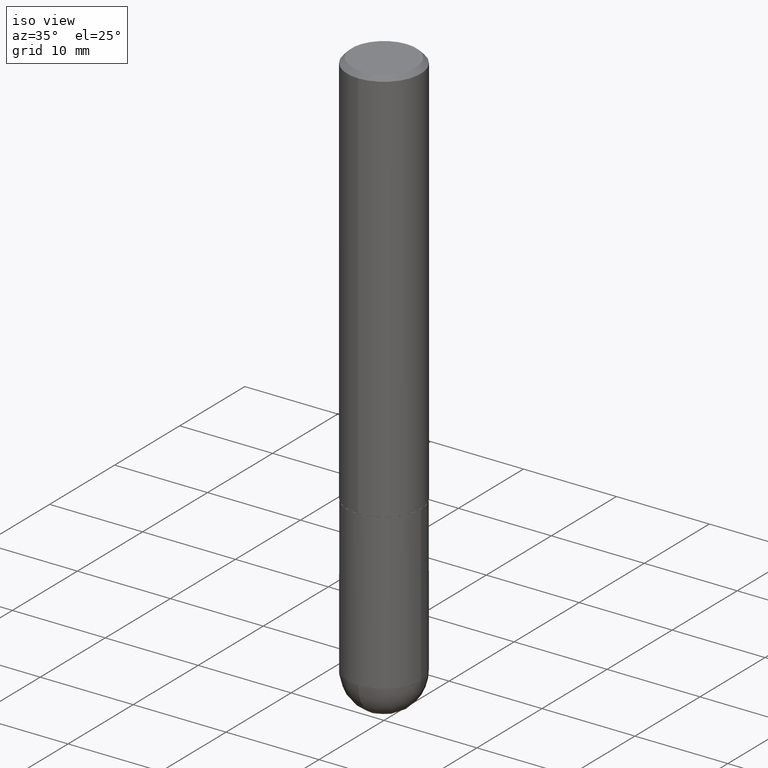
[diagram: clean part render]
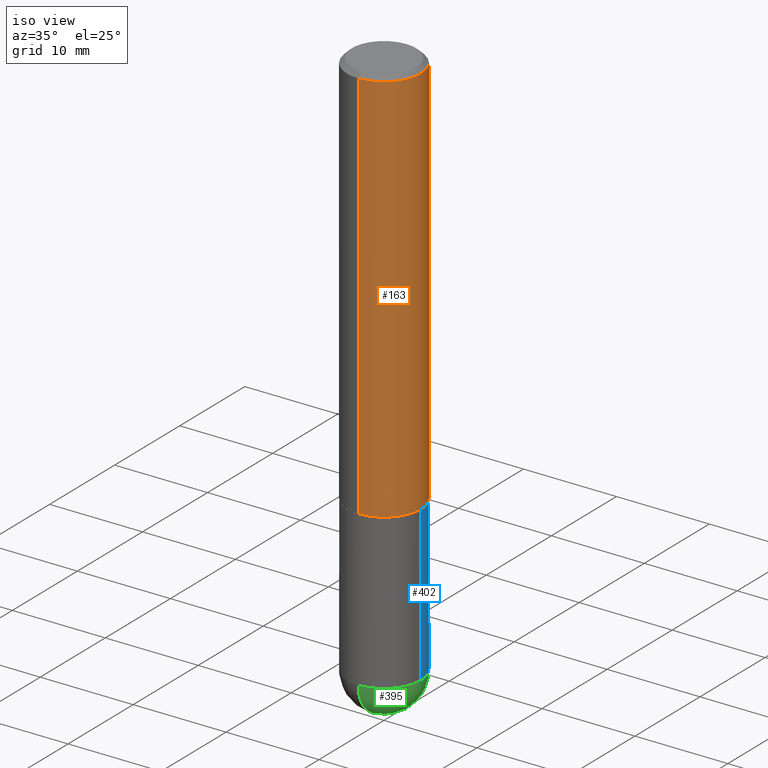
[diagram: same view with three faces highlighted in distinct colors, each labeled with its STEP entity id]
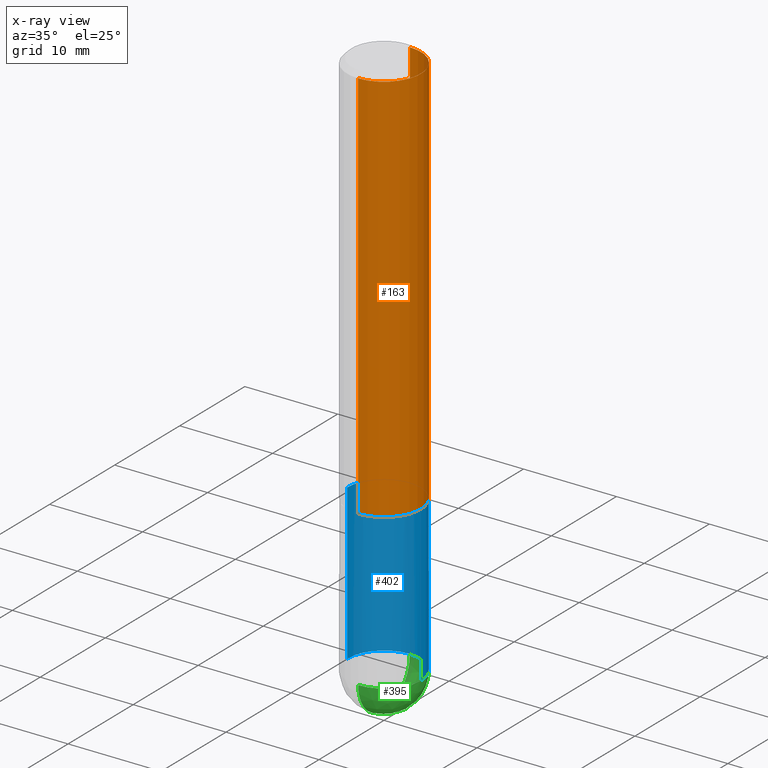
[diagram: x-ray of the same camera — body ghosted, the three highlighted faces saturated]
A machine part, iso view with three faces highlighted in distinct colors.
The next image is the same camera in x-ray (body ghosted, the three faces saturated) — at least one of them is partly hidden behind the body in this view.
Their STEP definitions:

[orange] entity #163 — the highlighted cylindrical surface (partial cylindrical patch) has radius 3.9688 mm, axis along (-0, 0, 1).
#1 = ORIENTED_EDGE ( 'NONE', *, *, #246, .T. ) ;
#5 = VERTEX_POINT ( 'NONE', #139 ) ;
#18 = AXIS2_PLACEMENT_3D ( 'NONE', #113, #346, #312 ) ;
#22 = DIRECTION ( 'NONE',  ( -6.982962677686265133E-15, -1.000000000000000000, 3.496765431890256920E-15 ) ) ;
#28 = VERTEX_POINT ( 'NONE', #148 ) ;
#83 = EDGE_CURVE ( 'NONE', #350, #28, #107, .T. ) ;
#86 = CARTESIAN_POINT ( 'NONE',  ( 1.091087918388479568E-15, 0.1562499999999999445, -0.02000000000000057981 ) ) ;
#95 = ORIENTED_EDGE ( 'NONE', *, *, #189, .F. ) ;
#98 = VECTOR ( 'NONE', #149, 39.37007874015748143 ) ;
#100 = CARTESIAN_POINT ( 'NONE',  ( -1.091087918388439336E-15, -0.1562500000000060785, -1.686999999999999611 ) ) ;
#103 = CARTESIAN_POINT ( 'NONE',  ( 1.110223024625157132E-15, 0.1562500000000001110, -5.454067469963343169E-16 ) ) ;
#107 = CIRCLE ( 'NONE', #403, 0.1562500000000002220 ) ;
#110 = CYLINDRICAL_SURFACE ( 'NONE', #18, 0.1562500000000001110 ) ;
#113 = CARTESIAN_POINT ( 'NONE',  ( 0.000000000000000000, 0.000000000000000000, 0.000000000000000000 ) ) ;
#131 = EDGE_CURVE ( 'NONE', #5, #201, #172, .T. ) ;
#139 = CARTESIAN_POINT ( 'NONE',  ( -1.071952812151801215E-15, -0.1562500000000000833, -0.01999999999999948694 ) ) ;
#146 = EDGE_LOOP ( 'NONE', ( #393, #1, #319, #95 ) ) ;
#148 = CARTESIAN_POINT ( 'NONE',  ( 1.110223024625178431E-15, 0.1562499999999943379, -1.687000000000000499 ) ) ;
#149 = DIRECTION ( 'NONE',  ( -2.446082020685560042E-29, 3.490603180776537498E-15, 1.000000000000000000 ) ) ;
#163 = ADVANCED_FACE ( 'NONE', ( #307 ), #110, .T. ) ;
#172 = CIRCLE ( 'NONE', #268, 0.1562500000000000000 ) ;
#189 = EDGE_CURVE ( 'NONE', #350, #5, #342, .T. ) ;
#198 = DIRECTION ( 'NONE',  ( -2.446082020685560042E-29, 3.490603180776537498E-15, 1.000000000000000000 ) ) ;
#199 = DIRECTION ( 'NONE',  ( -2.446082020685560042E-29, 3.490603180776537498E-15, 1.000000000000000000 ) ) ;
#201 = VERTEX_POINT ( 'NONE', #86 ) ;
#244 = DIRECTION ( 'NONE',  ( -2.446082020685560042E-29, 3.490603180776537498E-15, 1.000000000000000000 ) ) ;
#246 = EDGE_CURVE ( 'NONE', #28, #201, #351, .T. ) ;
#254 = VECTOR ( 'NONE', #198, 39.37007874015748143 ) ;
#268 = AXIS2_PLACEMENT_3D ( 'NONE', #405, #244, #22 ) ;
#307 = FACE_OUTER_BOUND ( 'NONE', #146, .T. ) ;
#308 = CARTESIAN_POINT ( 'NONE',  ( -1.091087918388479765E-15, -0.1562500000000001110, 5.454067469963343169E-16 ) ) ;
#312 = DIRECTION ( 'NONE',  ( -6.982962677686265922E-15, -1.000000000000000000, 3.490603180776537104E-15 ) ) ;
#319 = ORIENTED_EDGE ( 'NONE', *, *, #131, .F. ) ;
#342 = LINE ( 'NONE', #308, #98 ) ;
#346 = DIRECTION ( 'NONE',  ( -2.446082020685560042E-29, 3.490603180776537498E-15, 1.000000000000000000 ) ) ;
#350 = VERTEX_POINT ( 'NONE', #100 ) ;
#351 = LINE ( 'NONE', #103, #254 ) ;
#361 = CARTESIAN_POINT ( 'NONE',  ( 4.126540368896540526E-29, -5.888647565970019255E-15, -1.687000000000000055 ) ) ;
#364 = DIRECTION ( 'NONE',  ( -6.982962677686265922E-15, -1.000000000000000000, 3.496765431890251792E-15 ) ) ;
#393 = ORIENTED_EDGE ( 'NONE', *, *, #83, .T. ) ;
#403 = AXIS2_PLACEMENT_3D ( 'NONE', #361, #199, #364 ) ;
#405 = CARTESIAN_POINT ( 'NONE',  ( 4.892164041371128702E-31, -6.981206361553086139E-17, -0.02000000000000003511 ) ) ;

[blue] entity #402 — the highlighted cylindrical surface (partial cylindrical patch) has radius 3.9688 mm, axis along (-0, 0, 1).
#2 = CARTESIAN_POINT ( 'NONE',  ( 5.731567514496413899E-29, -8.183159387913622595E-15, -2.343750000000000000 ) ) ;
#8 = DIRECTION ( 'NONE',  ( 1.000000000000000000, -6.982962677686262766E-15, 0.000000000000000000 ) ) ;
#41 = FACE_OUTER_BOUND ( 'NONE', #116, .T. ) ;
#46 = DIRECTION ( 'NONE',  ( -2.445468806185136597E-29, 3.491481338843145583E-15, 1.000000000000000000 ) ) ;
#52 = CARTESIAN_POINT ( 'NONE',  ( 0.000000000000000000, 0.000000000000000000, 0.000000000000000000 ) ) ;
#72 = CARTESIAN_POINT ( 'NONE',  ( -0.1562500000000000000, -5.928166919315270321E-15, -2.343750000000000000 ) ) ;
#74 = CARTESIAN_POINT ( 'NONE',  ( -0.1562500000000000000, 1.110223024625156540E-15, -7.685836078523291160E-30 ) ) ;
#77 = ORIENTED_EDGE ( 'NONE', *, *, #114, .T. ) ;
#80 = AXIS2_PLACEMENT_3D ( 'NONE', #143, #226, #8 ) ;
#91 = AXIS2_PLACEMENT_3D ( 'NONE', #52, #138, #142 ) ;
#92 = VECTOR ( 'NONE', #401, 39.37007874015748143 ) ;
#94 = ORIENTED_EDGE ( 'NONE', *, *, #229, .T. ) ;
#114 = EDGE_CURVE ( 'NONE', #281, #270, #396, .T. ) ;
#116 = EDGE_LOOP ( 'NONE', ( #188, #77, #412, #288, #94 ) ) ;
#126 = DIRECTION ( 'NONE',  ( -2.445468806185136597E-29, 3.491481338843145583E-15, 1.000000000000000000 ) ) ;
#132 = VERTEX_POINT ( 'NONE', #152 ) ;
#138 = DIRECTION ( 'NONE',  ( -2.445468806185136597E-29, 3.491481338843145583E-15, 1.000000000000000000 ) ) ;
#142 = DIRECTION ( 'NONE',  ( 1.000000000000000000, -6.982962677686266711E-15, 4.876176775795936353E-29 ) ) ;
#143 = CARTESIAN_POINT ( 'NONE',  ( 5.731567514496413899E-29, -8.183159387913622595E-15, -2.343750000000000000 ) ) ;
#150 = AXIS2_PLACEMENT_3D ( 'NONE', #335, #46, #177 ) ;
#152 = CARTESIAN_POINT ( 'NONE',  ( 0.1562500000000000000, -6.984708418355709513E-15, -1.688000000000000167 ) ) ;
#177 = DIRECTION ( 'NONE',  ( 1.000000000000000000, -6.982962677686269077E-15, 0.000000000000000000 ) ) ;
#183 = CIRCLE ( 'NONE', #150, 0.1562500000000000000 ) ;
#188 = ORIENTED_EDGE ( 'NONE', *, *, #345, .T. ) ;
#205 = VECTOR ( 'NONE', #374, 39.37007874015748143 ) ;
#210 = CIRCLE ( 'NONE', #80, 0.1562500000000000000 ) ;
#211 = EDGE_CURVE ( 'NONE', #385, #132, #275, .T. ) ;
#226 = DIRECTION ( 'NONE',  ( -2.445468806185136597E-29, 3.491481338843145583E-15, 1.000000000000000000 ) ) ;
#229 = EDGE_CURVE ( 'NONE', #385, #306, #410, .T. ) ;
#230 = CARTESIAN_POINT ( 'NONE',  ( -0.1562500000000000000, -5.928166919315269532E-15, -1.688000000000000167 ) ) ;
#248 = CARTESIAN_POINT ( 'NONE',  ( 0.1562500000000000000, -8.129477862328905246E-15, -2.343750000000000000 ) ) ;
#255 = DIRECTION ( 'NONE',  ( 1.000000000000000000, -6.982962677686262766E-15, 0.000000000000000000 ) ) ;
#270 = VERTEX_POINT ( 'NONE', #230 ) ;
#275 = LINE ( 'NONE', #406, #205 ) ;
#281 = VERTEX_POINT ( 'NONE', #72 ) ;
#288 = ORIENTED_EDGE ( 'NONE', *, *, #211, .F. ) ;
#306 = VERTEX_POINT ( 'NONE', #328 ) ;
#323 = AXIS2_PLACEMENT_3D ( 'NONE', #2, #126, #255 ) ;
#325 = EDGE_CURVE ( 'NONE', #132, #270, #183, .T. ) ;
#328 = CARTESIAN_POINT ( 'NONE',  ( 1.091087918388535577E-15, 0.1562499999999916733, -2.343750000000000444 ) ) ;
#335 = CARTESIAN_POINT ( 'NONE',  ( 4.127951344840510809E-29, -5.893620499967230340E-15, -1.688000000000000167 ) ) ;
#345 = EDGE_CURVE ( 'NONE', #306, #281, #210, .T. ) ;
#368 = CYLINDRICAL_SURFACE ( 'NONE', #91, 0.1562500000000000000 ) ;
#374 = DIRECTION ( 'NONE',  ( -2.445468806185136877E-29, 3.491481338843145188E-15, 1.000000000000000000 ) ) ;
#385 = VERTEX_POINT ( 'NONE', #248 ) ;
#396 = LINE ( 'NONE', #74, #92 ) ;
#401 = DIRECTION ( 'NONE',  ( -2.445468806185136877E-29, 3.491481338843145188E-15, 1.000000000000000000 ) ) ;
#402 = ADVANCED_FACE ( 'NONE', ( #41 ), #368, .T. ) ;
#406 = CARTESIAN_POINT ( 'NONE',  ( 0.1562500000000000000, -1.091087918388479174E-15, 7.619026212181150377E-30 ) ) ;
#410 = CIRCLE ( 'NONE', #323, 0.1562500000000000000 ) ;
#412 = ORIENTED_EDGE ( 'NONE', *, *, #325, .F. ) ;

[green] entity #395 — the highlighted spherical surface has radius 3.9688 mm.
#2 = CARTESIAN_POINT ( 'NONE',  ( 5.731567514496413899E-29, -8.183159387913622595E-15, -2.343750000000000000 ) ) ;
#11 = DIRECTION ( 'NONE',  ( -2.445468806185136597E-29, 3.491481338843145583E-15, 1.000000000000000000 ) ) ;
#20 = CARTESIAN_POINT ( 'NONE',  ( 5.789233224183170584E-29, -9.193318162129576161E-15, -2.500000000000000000 ) ) ;
#29 = DIRECTION ( 'NONE',  ( 1.000000000000000000, -6.982962677686265922E-15, 4.883557194083112340E-29 ) ) ;
#31 = DIRECTION ( 'NONE',  ( 6.982962677686265922E-15, 1.000000000000000000, 0.000000000000000000 ) ) ;
#38 = ORIENTED_EDGE ( 'NONE', *, *, #378, .F. ) ;
#44 = DIRECTION ( 'NONE',  ( -1.000000000000000000, 6.982962677686265922E-15, -4.883557194083112340E-29 ) ) ;
#63 = CIRCLE ( 'NONE', #294, 0.1562500000000002498 ) ;
#79 = AXIS2_PLACEMENT_3D ( 'NONE', #316, #29, #31 ) ;
#96 = EDGE_LOOP ( 'NONE', ( #38, #225, #129, #145 ) ) ;
#99 = CIRCLE ( 'NONE', #404, 0.1562500000000000000 ) ;
#126 = DIRECTION ( 'NONE',  ( -2.445468806185136597E-29, 3.491481338843145583E-15, 1.000000000000000000 ) ) ;
#129 = ORIENTED_EDGE ( 'NONE', *, *, #229, .F. ) ;
#145 = ORIENTED_EDGE ( 'NONE', *, *, #250, .F. ) ;
#156 = CARTESIAN_POINT ( 'NONE',  ( -1.110223024625101517E-15, -0.1562500000000085487, -2.343749999999999556 ) ) ;
#193 = DIRECTION ( 'NONE',  ( -7.105427357601000281E-15, -1.000000000000000000, 0.000000000000000000 ) ) ;
#200 = DIRECTION ( 'NONE',  ( 6.982962677686265922E-15, 1.000000000000000000, -3.496765431890251398E-15 ) ) ;
#206 = VERTEX_POINT ( 'NONE', #20 ) ;
#219 = AXIS2_PLACEMENT_3D ( 'NONE', #362, #44, #200 ) ;
#222 = EDGE_CURVE ( 'NONE', #206, #306, #251, .T. ) ;
#223 = VERTEX_POINT ( 'NONE', #156 ) ;
#225 = ORIENTED_EDGE ( 'NONE', *, *, #222, .T. ) ;
#229 = EDGE_CURVE ( 'NONE', #385, #306, #410, .T. ) ;
#235 = CARTESIAN_POINT ( 'NONE',  ( 5.400447736582527652E-29, -8.657341756053672891E-15, -2.343750000000000000 ) ) ;
#248 = CARTESIAN_POINT ( 'NONE',  ( 0.1562500000000000000, -8.129477862328905246E-15, -2.343750000000000000 ) ) ;
#250 = EDGE_CURVE ( 'NONE', #223, #385, #99, .T. ) ;
#251 = CIRCLE ( 'NONE', #79, 0.1562500000000002498 ) ;
#255 = DIRECTION ( 'NONE',  ( 1.000000000000000000, -6.982962677686262766E-15, 0.000000000000000000 ) ) ;
#259 = FACE_OUTER_BOUND ( 'NONE', #96, .T. ) ;
#294 = AXIS2_PLACEMENT_3D ( 'NONE', #235, #343, #193 ) ;
#306 = VERTEX_POINT ( 'NONE', #328 ) ;
#316 = CARTESIAN_POINT ( 'NONE',  ( 5.400447736582527652E-29, -8.657341756053672891E-15, -2.343750000000000000 ) ) ;
#323 = AXIS2_PLACEMENT_3D ( 'NONE', #2, #126, #255 ) ;
#328 = CARTESIAN_POINT ( 'NONE',  ( 1.091087918388535577E-15, 0.1562499999999916733, -2.343750000000000444 ) ) ;
#329 = CARTESIAN_POINT ( 'NONE',  ( 5.731567514496413899E-29, -8.183159387913622595E-15, -2.343750000000000000 ) ) ;
#334 = SPHERICAL_SURFACE ( 'NONE', #219, 0.1562500000000002498 ) ;
#343 = DIRECTION ( 'NONE',  ( -1.000000000000000000, 7.105427357601001070E-15, -4.926315508542082329E-29 ) ) ;
#362 = CARTESIAN_POINT ( 'NONE',  ( 5.400447736582527652E-29, -8.657341756053672891E-15, -2.343750000000000000 ) ) ;
#378 = EDGE_CURVE ( 'NONE', #206, #223, #63, .T. ) ;
#385 = VERTEX_POINT ( 'NONE', #248 ) ;
#390 = DIRECTION ( 'NONE',  ( 1.000000000000000000, -6.982962677686262766E-15, 0.000000000000000000 ) ) ;
#395 = ADVANCED_FACE ( 'NONE', ( #259 ), #334, .T. ) ;
#404 = AXIS2_PLACEMENT_3D ( 'NONE', #329, #11, #390 ) ;
#410 = CIRCLE ( 'NONE', #323, 0.1562500000000000000 ) ;